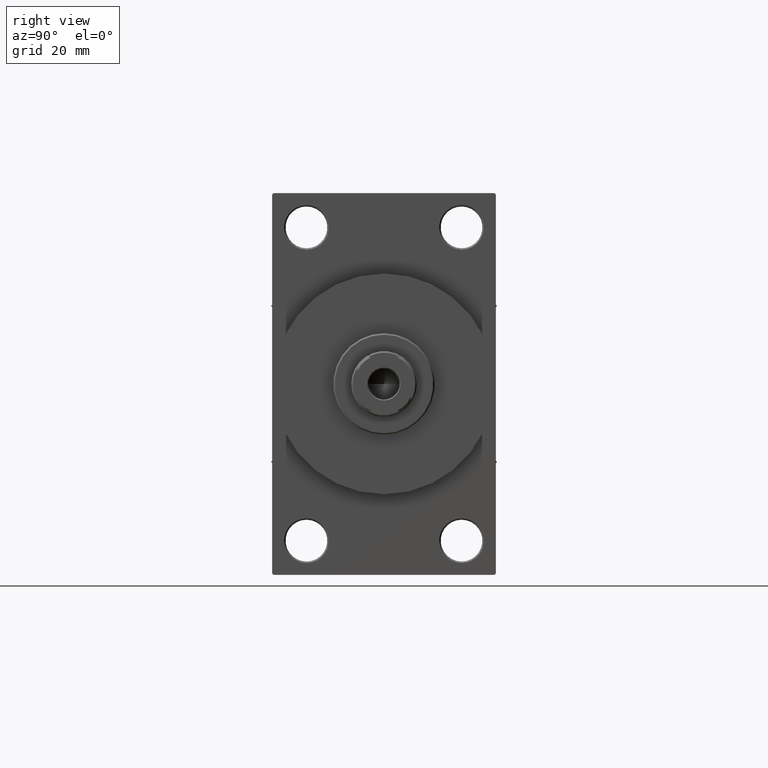
[diagram: clean part render]
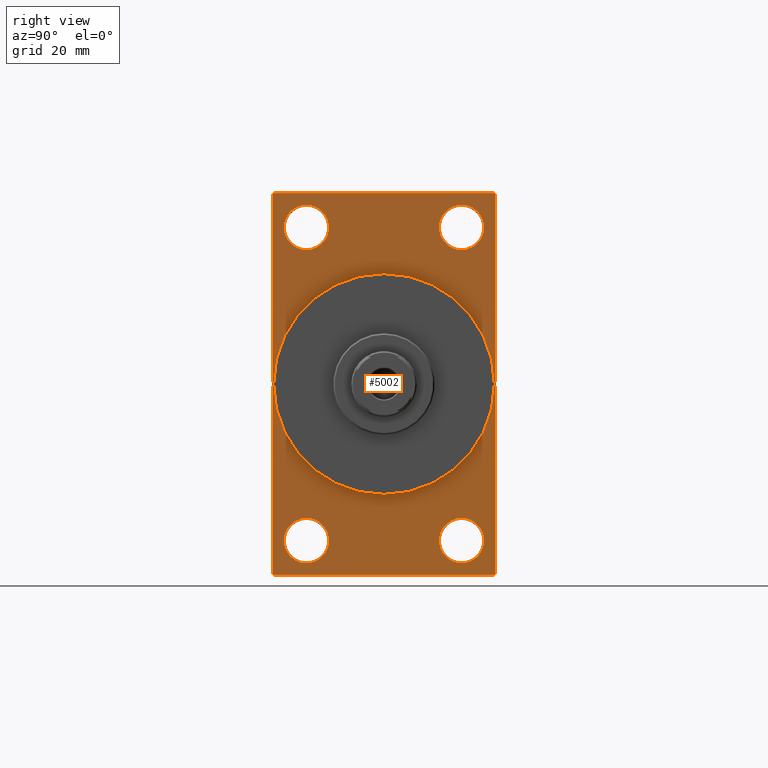
[diagram: same view with one face highlighted and labeled with its STEP entity id]
A machine part, right view. The second image highlights one B-rep face of the part: STEP entity #5002.
In plain terms, the highlighted planar face has unit normal (-1, 0, 0).
Its self-contained STEP definition (entity closure, byte-faithful):
#208 = CARTESIAN_POINT ( 'NONE',  ( 138.0000000000000000, 0.000000000000000000, 0.000000000000000000 ) ) ;
#697 = EDGE_CURVE ( 'NONE', #40563, #2177, #16860, .T. ) ;
#844 = EDGE_CURVE ( 'NONE', #40563, #24941, #7706, .T. ) ;
#877 = VERTEX_POINT ( 'NONE', #41115 ) ;
#946 = AXIS2_PLACEMENT_3D ( 'NONE', #208, #14767, #11184 ) ;
#1682 = CARTESIAN_POINT ( 'NONE',  ( 138.0000000000000000, 37.49999999999999289, -63.50000000000001421 ) ) ;
#2154 = EDGE_CURVE ( 'NONE', #2177, #34288, #9755, .T. ) ;
#2177 = VERTEX_POINT ( 'NONE', #15996 ) ;
#2223 = CARTESIAN_POINT ( 'NONE',  ( 138.0000000000000000, 37.49999999999999289, -63.50000000000001421 ) ) ;
#2239 = EDGE_CURVE ( 'NONE', #19471, #39411, #42803, .T. ) ;
#2806 = CIRCLE ( 'NONE', #27947, 37.00000000000000000 ) ;
#2860 = PLANE ( 'NONE',  #29925 ) ;
#3013 = DIRECTION ( 'NONE',  ( 0.000000000000000000, -0.7071067811865672237, 0.7071067811865279218 ) ) ;
#3340 = CARTESIAN_POINT ( 'NONE',  ( 138.0000000000000000, 26.00000000000000000, -52.49999999999999289 ) ) ;
#3355 = EDGE_LOOP ( 'NONE', ( #41362, #16850 ) ) ;
#3683 = VERTEX_POINT ( 'NONE', #14235 ) ;
#3924 = CARTESIAN_POINT ( 'NONE',  ( 138.0000000000000000, -37.49999999999999289, 63.49999999999994316 ) ) ;
#4252 = EDGE_CURVE ( 'NONE', #46900, #877, #5036, .T. ) ;
#4444 = CARTESIAN_POINT ( 'NONE',  ( 138.0000000000000000, -25.99999999999999645, -60.00000000000000000 ) ) ;
#4536 = VERTEX_POINT ( 'NONE', #24921 ) ;
#5002 = ADVANCED_FACE ( 'NONE', ( #35548, #35779, #27671, #17176, #46522, #43195 ), #2860, .F. ) ;
#5019 = CARTESIAN_POINT ( 'NONE',  ( 138.0000000000000000, 37.50000000000000000, 63.99999999999998579 ) ) ;
#5036 = LINE ( 'NONE', #41077, #24556 ) ;
#5199 = LINE ( 'NONE', #27137, #39306 ) ;
#5736 = AXIS2_PLACEMENT_3D ( 'NONE', #24935, #10130, #28265 ) ;
#6039 = CIRCLE ( 'NONE', #6791, 7.500000000000007105 ) ;
#6181 = VECTOR ( 'NONE', #3013, 1000.000000000000000 ) ;
#6371 = DIRECTION ( 'NONE',  ( -1.000000000000000000, 0.000000000000000000, -0.000000000000000000 ) ) ;
#6469 = CARTESIAN_POINT ( 'NONE',  ( 138.0000000000000000, -37.49999999999999289, 63.99999999999997158 ) ) ;
#6791 = AXIS2_PLACEMENT_3D ( 'NONE', #19718, #45241, #12542 ) ;
#6970 = ORIENTED_EDGE ( 'NONE', *, *, #8281, .T. ) ;
#7477 = CIRCLE ( 'NONE', #27288, 7.500000000000007105 ) ;
#7706 = LINE ( 'NONE', #33956, #34395 ) ;
#7862 = ORIENTED_EDGE ( 'NONE', *, *, #29827, .F. ) ;
#8281 = EDGE_CURVE ( 'NONE', #32769, #41337, #18619, .T. ) ;
#8353 = CARTESIAN_POINT ( 'NONE',  ( 138.0000000000000000, -37.49999999999999289, 63.49999999999994316 ) ) ;
#8533 = DIRECTION ( 'NONE',  ( 0.000000000000000000, 0.7071067811865574537, -0.7071067811865376918 ) ) ;
#8604 = DIRECTION ( 'NONE',  ( 0.000000000000000000, -1.000000000000000000, -1.850371707708594563E-16 ) ) ;
#9755 = LINE ( 'NONE', #5019, #10004 ) ;
#10004 = VECTOR ( 'NONE', #12638, 1000.000000000000000 ) ;
#10130 = DIRECTION ( 'NONE',  ( -1.000000000000000000, 0.000000000000000000, -0.000000000000000000 ) ) ;
#10260 = EDGE_CURVE ( 'NONE', #39411, #19471, #21750, .T. ) ;
#10312 = CARTESIAN_POINT ( 'NONE',  ( 138.0000000000000000, 26.00000000000000000, 52.49999999999999289 ) ) ;
#10430 = EDGE_CURVE ( 'NONE', #3683, #14655, #13316, .T. ) ;
#11184 = DIRECTION ( 'NONE',  ( 0.000000000000000000, 0.000000000000000000, -1.000000000000000000 ) ) ;
#11449 = EDGE_LOOP ( 'NONE', ( #39206, #44218 ) ) ;
#11609 = ORIENTED_EDGE ( 'NONE', *, *, #45461, .T. ) ;
#12542 = DIRECTION ( 'NONE',  ( 0.000000000000000000, 0.000000000000000000, 1.000000000000000000 ) ) ;
#12638 = DIRECTION ( 'NONE',  ( 0.000000000000000000, -1.000000000000000000, -1.850371707708594563E-16 ) ) ;
#13051 = AXIS2_PLACEMENT_3D ( 'NONE', #25018, #39579, #18114 ) ;
#13316 = CIRCLE ( 'NONE', #5736, 7.500000000000007105 ) ;
#13622 = AXIS2_PLACEMENT_3D ( 'NONE', #13753, #6371, #31887 ) ;
#13709 = DIRECTION ( 'NONE',  ( -0.000000000000000000, -0.7071067811865524577, -0.7071067811865426878 ) ) ;
#13753 = CARTESIAN_POINT ( 'NONE',  ( 138.0000000000000000, -25.99999999999999645, -52.49999999999999289 ) ) ;
#14235 = CARTESIAN_POINT ( 'NONE',  ( 138.0000000000000000, -25.99999999999999645, -44.99999999999998579 ) ) ;
#14568 = LINE ( 'NONE', #6469, #38921 ) ;
#14655 = VERTEX_POINT ( 'NONE', #4444 ) ;
#14767 = DIRECTION ( 'NONE',  ( 1.000000000000000000, 0.000000000000000000, 0.000000000000000000 ) ) ;
#14783 = DIRECTION ( 'NONE',  ( -1.000000000000000000, 0.000000000000000000, -0.000000000000000000 ) ) ;
#14785 = ORIENTED_EDGE ( 'NONE', *, *, #26915, .T. ) ;
#14857 = ORIENTED_EDGE ( 'NONE', *, *, #844, .F. ) ;
#14950 = CARTESIAN_POINT ( 'NONE',  ( 138.0000000000000000, 37.50000000000000000, 63.49999999999998579 ) ) ;
#15649 = DIRECTION ( 'NONE',  ( -1.000000000000000000, 0.000000000000000000, -0.000000000000000000 ) ) ;
#15996 = CARTESIAN_POINT ( 'NONE',  ( 138.0000000000000000, 36.99999999999997158, 63.99999999999998579 ) ) ;
#16043 = EDGE_CURVE ( 'NONE', #25952, #877, #5199, .T. ) ;
#16242 = VECTOR ( 'NONE', #26985, 1000.000000000000000 ) ;
#16850 = ORIENTED_EDGE ( 'NONE', *, *, #37114, .T. ) ;
#16860 = LINE ( 'NONE', #35012, #6181 ) ;
#17176 = FACE_BOUND ( 'NONE', #3355, .T. ) ;
#17258 = CARTESIAN_POINT ( 'NONE',  ( 138.0000000000000000, -36.99999999999995737, 63.99999999999997158 ) ) ;
#17483 = ORIENTED_EDGE ( 'NONE', *, *, #697, .T. ) ;
#18114 = DIRECTION ( 'NONE',  ( 0.000000000000000000, 0.000000000000000000, 1.000000000000000000 ) ) ;
#18214 = DIRECTION ( 'NONE',  ( -1.000000000000000000, 0.000000000000000000, -0.000000000000000000 ) ) ;
#18619 = CIRCLE ( 'NONE', #40726, 7.500000000000007105 ) ;
#19471 = VERTEX_POINT ( 'NONE', #34448 ) ;
#19577 = CARTESIAN_POINT ( 'NONE',  ( 138.0000000000000000, 0.000000000000000000, 0.000000000000000000 ) ) ;
#19718 = CARTESIAN_POINT ( 'NONE',  ( 138.0000000000000000, -25.99999999999999645, 52.50000000000000000 ) ) ;
#20131 = CIRCLE ( 'NONE', #36894, 7.500000000000007105 ) ;
#21240 = CARTESIAN_POINT ( 'NONE',  ( 138.0000000000000000, -25.99999999999999645, 60.00000000000000711 ) ) ;
#21365 = EDGE_CURVE ( 'NONE', #4536, #35434, #7477, .T. ) ;
#21750 = CIRCLE ( 'NONE', #24023, 7.500000000000007105 ) ;
#22129 = VERTEX_POINT ( 'NONE', #27570 ) ;
#22454 = VERTEX_POINT ( 'NONE', #8353 ) ;
#22856 = CARTESIAN_POINT ( 'NONE',  ( 138.0000000000000000, 26.00000000000000000, -60.00000000000000000 ) ) ;
#23363 = ORIENTED_EDGE ( 'NONE', *, *, #10430, .T. ) ;
#23370 = EDGE_CURVE ( 'NONE', #14655, #3683, #42557, .T. ) ;
#23627 = EDGE_CURVE ( 'NONE', #41337, #32769, #6039, .T. ) ;
#24023 = AXIS2_PLACEMENT_3D ( 'NONE', #3340, #14783, #36735 ) ;
#24556 = VECTOR ( 'NONE', #8604, 1000.000000000000000 ) ;
#24921 = CARTESIAN_POINT ( 'NONE',  ( 138.0000000000000000, 26.00000000000000000, 44.99999999999998579 ) ) ;
#24935 = CARTESIAN_POINT ( 'NONE',  ( 138.0000000000000000, -25.99999999999999645, -52.49999999999999289 ) ) ;
#24941 = VERTEX_POINT ( 'NONE', #2223 ) ;
#25018 = CARTESIAN_POINT ( 'NONE',  ( 138.0000000000000000, 26.00000000000000000, -52.49999999999999289 ) ) ;
#25108 = DIRECTION ( 'NONE',  ( 0.000000000000000000, 0.000000000000000000, 1.000000000000000000 ) ) ;
#25541 = CARTESIAN_POINT ( 'NONE',  ( 138.0000000000000000, 26.00000000000000000, 60.00000000000000000 ) ) ;
#25634 = LINE ( 'NONE', #3924, #29521 ) ;
#25952 = VERTEX_POINT ( 'NONE', #33948 ) ;
#26915 = EDGE_CURVE ( 'NONE', #22454, #25952, #14568, .T. ) ;
#26985 = DIRECTION ( 'NONE',  ( -0.000000000000000000, 0.7071067811865573427, 0.7071067811865378028 ) ) ;
#27137 = CARTESIAN_POINT ( 'NONE',  ( 138.0000000000000000, -36.99999999999993605, -64.00000000000001421 ) ) ;
#27288 = AXIS2_PLACEMENT_3D ( 'NONE', #36342, #18214, #32756 ) ;
#27570 = CARTESIAN_POINT ( 'NONE',  ( 138.0000000000000000, 0.000000000000000000, 37.00000000000000000 ) ) ;
#27671 = FACE_BOUND ( 'NONE', #11449, .T. ) ;
#27947 = AXIS2_PLACEMENT_3D ( 'NONE', #19577, #38159, #34598 ) ;
#28265 = DIRECTION ( 'NONE',  ( 0.000000000000000000, 0.000000000000000000, 1.000000000000000000 ) ) ;
#28773 = ORIENTED_EDGE ( 'NONE', *, *, #23627, .T. ) ;
#29121 = DIRECTION ( 'NONE',  ( 0.000000000000000000, 0.000000000000000000, -1.000000000000000000 ) ) ;
#29320 = EDGE_LOOP ( 'NONE', ( #28773, #6970 ) ) ;
#29521 = VECTOR ( 'NONE', #13709, 1000.000000000000000 ) ;
#29535 = ORIENTED_EDGE ( 'NONE', *, *, #2154, .T. ) ;
#29827 = EDGE_CURVE ( 'NONE', #22129, #40666, #42850, .T. ) ;
#29925 = AXIS2_PLACEMENT_3D ( 'NONE', #31721, #32195, #31489 ) ;
#31489 = DIRECTION ( 'NONE',  ( -0.000000000000000000, 0.000000000000000000, 1.000000000000000000 ) ) ;
#31650 = EDGE_CURVE ( 'NONE', #46900, #24941, #41558, .T. ) ;
#31721 = CARTESIAN_POINT ( 'NONE',  ( 138.0000000000000000, 0.000000000000000000, 0.000000000000000000 ) ) ;
#31887 = DIRECTION ( 'NONE',  ( 0.000000000000000000, 0.000000000000000000, 1.000000000000000000 ) ) ;
#32195 = DIRECTION ( 'NONE',  ( -1.000000000000000000, 0.000000000000000000, -0.000000000000000000 ) ) ;
#32749 = EDGE_LOOP ( 'NONE', ( #7862, #46962 ) ) ;
#32756 = DIRECTION ( 'NONE',  ( 0.000000000000000000, 0.000000000000000000, 1.000000000000000000 ) ) ;
#32769 = VERTEX_POINT ( 'NONE', #21240 ) ;
#33948 = CARTESIAN_POINT ( 'NONE',  ( 138.0000000000000000, -37.49999999999999289, -63.49999999999997158 ) ) ;
#33956 = CARTESIAN_POINT ( 'NONE',  ( 138.0000000000000000, 37.50000000000000000, 63.99999999999998579 ) ) ;
#34288 = VERTEX_POINT ( 'NONE', #17258 ) ;
#34395 = VECTOR ( 'NONE', #40397, 1000.000000000000000 ) ;
#34448 = CARTESIAN_POINT ( 'NONE',  ( 138.0000000000000000, 26.00000000000000000, -44.99999999999998579 ) ) ;
#34598 = DIRECTION ( 'NONE',  ( 0.000000000000000000, 0.000000000000000000, -1.000000000000000000 ) ) ;
#35012 = CARTESIAN_POINT ( 'NONE',  ( 138.0000000000000000, 36.99999999999997158, 63.99999999999998579 ) ) ;
#35434 = VERTEX_POINT ( 'NONE', #25541 ) ;
#35548 = FACE_BOUND ( 'NONE', #29320, .T. ) ;
#35779 = FACE_BOUND ( 'NONE', #45817, .T. ) ;
#36342 = CARTESIAN_POINT ( 'NONE',  ( 138.0000000000000000, 26.00000000000000000, 52.49999999999999289 ) ) ;
#36735 = DIRECTION ( 'NONE',  ( 0.000000000000000000, 0.000000000000000000, 1.000000000000000000 ) ) ;
#36894 = AXIS2_PLACEMENT_3D ( 'NONE', #10312, #46592, #25108 ) ;
#37114 = EDGE_CURVE ( 'NONE', #35434, #4536, #20131, .T. ) ;
#38138 = ORIENTED_EDGE ( 'NONE', *, *, #23370, .T. ) ;
#38159 = DIRECTION ( 'NONE',  ( 1.000000000000000000, 0.000000000000000000, 0.000000000000000000 ) ) ;
#38629 = ORIENTED_EDGE ( 'NONE', *, *, #16043, .T. ) ;
#38921 = VECTOR ( 'NONE', #29121, 1000.000000000000000 ) ;
#39206 = ORIENTED_EDGE ( 'NONE', *, *, #10260, .T. ) ;
#39306 = VECTOR ( 'NONE', #8533, 999.9999999999998863 ) ;
#39411 = VERTEX_POINT ( 'NONE', #22856 ) ;
#39579 = DIRECTION ( 'NONE',  ( -1.000000000000000000, 0.000000000000000000, -0.000000000000000000 ) ) ;
#39996 = ORIENTED_EDGE ( 'NONE', *, *, #31650, .T. ) ;
#40213 = EDGE_LOOP ( 'NONE', ( #14785, #38629, #42607, #39996, #14857, #17483, #29535, #11609 ) ) ;
#40253 = CARTESIAN_POINT ( 'NONE',  ( 138.0000000000000000, -25.99999999999999645, 44.99999999999999289 ) ) ;
#40397 = DIRECTION ( 'NONE',  ( 0.000000000000000000, -5.421010862427522170E-17, -1.000000000000000000 ) ) ;
#40563 = VERTEX_POINT ( 'NONE', #14950 ) ;
#40666 = VERTEX_POINT ( 'NONE', #42591 ) ;
#40710 = CARTESIAN_POINT ( 'NONE',  ( 138.0000000000000000, -25.99999999999999645, 52.50000000000000000 ) ) ;
#40726 = AXIS2_PLACEMENT_3D ( 'NONE', #40710, #15649, #46748 ) ;
#41077 = CARTESIAN_POINT ( 'NONE',  ( 138.0000000000000000, 37.49999999999999289, -64.00000000000000000 ) ) ;
#41115 = CARTESIAN_POINT ( 'NONE',  ( 138.0000000000000000, -36.99999999999993605, -64.00000000000001421 ) ) ;
#41337 = VERTEX_POINT ( 'NONE', #40253 ) ;
#41362 = ORIENTED_EDGE ( 'NONE', *, *, #21365, .T. ) ;
#41558 = LINE ( 'NONE', #1682, #16242 ) ;
#42557 = CIRCLE ( 'NONE', #13622, 7.500000000000007105 ) ;
#42591 = CARTESIAN_POINT ( 'NONE',  ( 138.0000000000000000, 4.531193156845206793E-15, -37.00000000000000000 ) ) ;
#42607 = ORIENTED_EDGE ( 'NONE', *, *, #4252, .F. ) ;
#42803 = CIRCLE ( 'NONE', #13051, 7.500000000000007105 ) ;
#42850 = CIRCLE ( 'NONE', #946, 37.00000000000000000 ) ;
#43195 = FACE_OUTER_BOUND ( 'NONE', #40213, .T. ) ;
#43412 = EDGE_CURVE ( 'NONE', #40666, #22129, #2806, .T. ) ;
#44218 = ORIENTED_EDGE ( 'NONE', *, *, #2239, .T. ) ;
#44377 = CARTESIAN_POINT ( 'NONE',  ( 138.0000000000000000, 36.99999999999999289, -64.00000000000000000 ) ) ;
#45241 = DIRECTION ( 'NONE',  ( -1.000000000000000000, 0.000000000000000000, -0.000000000000000000 ) ) ;
#45461 = EDGE_CURVE ( 'NONE', #34288, #22454, #25634, .T. ) ;
#45817 = EDGE_LOOP ( 'NONE', ( #38138, #23363 ) ) ;
#46522 = FACE_BOUND ( 'NONE', #32749, .T. ) ;
#46592 = DIRECTION ( 'NONE',  ( -1.000000000000000000, 0.000000000000000000, -0.000000000000000000 ) ) ;
#46748 = DIRECTION ( 'NONE',  ( 0.000000000000000000, 0.000000000000000000, 1.000000000000000000 ) ) ;
#46900 = VERTEX_POINT ( 'NONE', #44377 ) ;
#46962 = ORIENTED_EDGE ( 'NONE', *, *, #43412, .F. ) ;